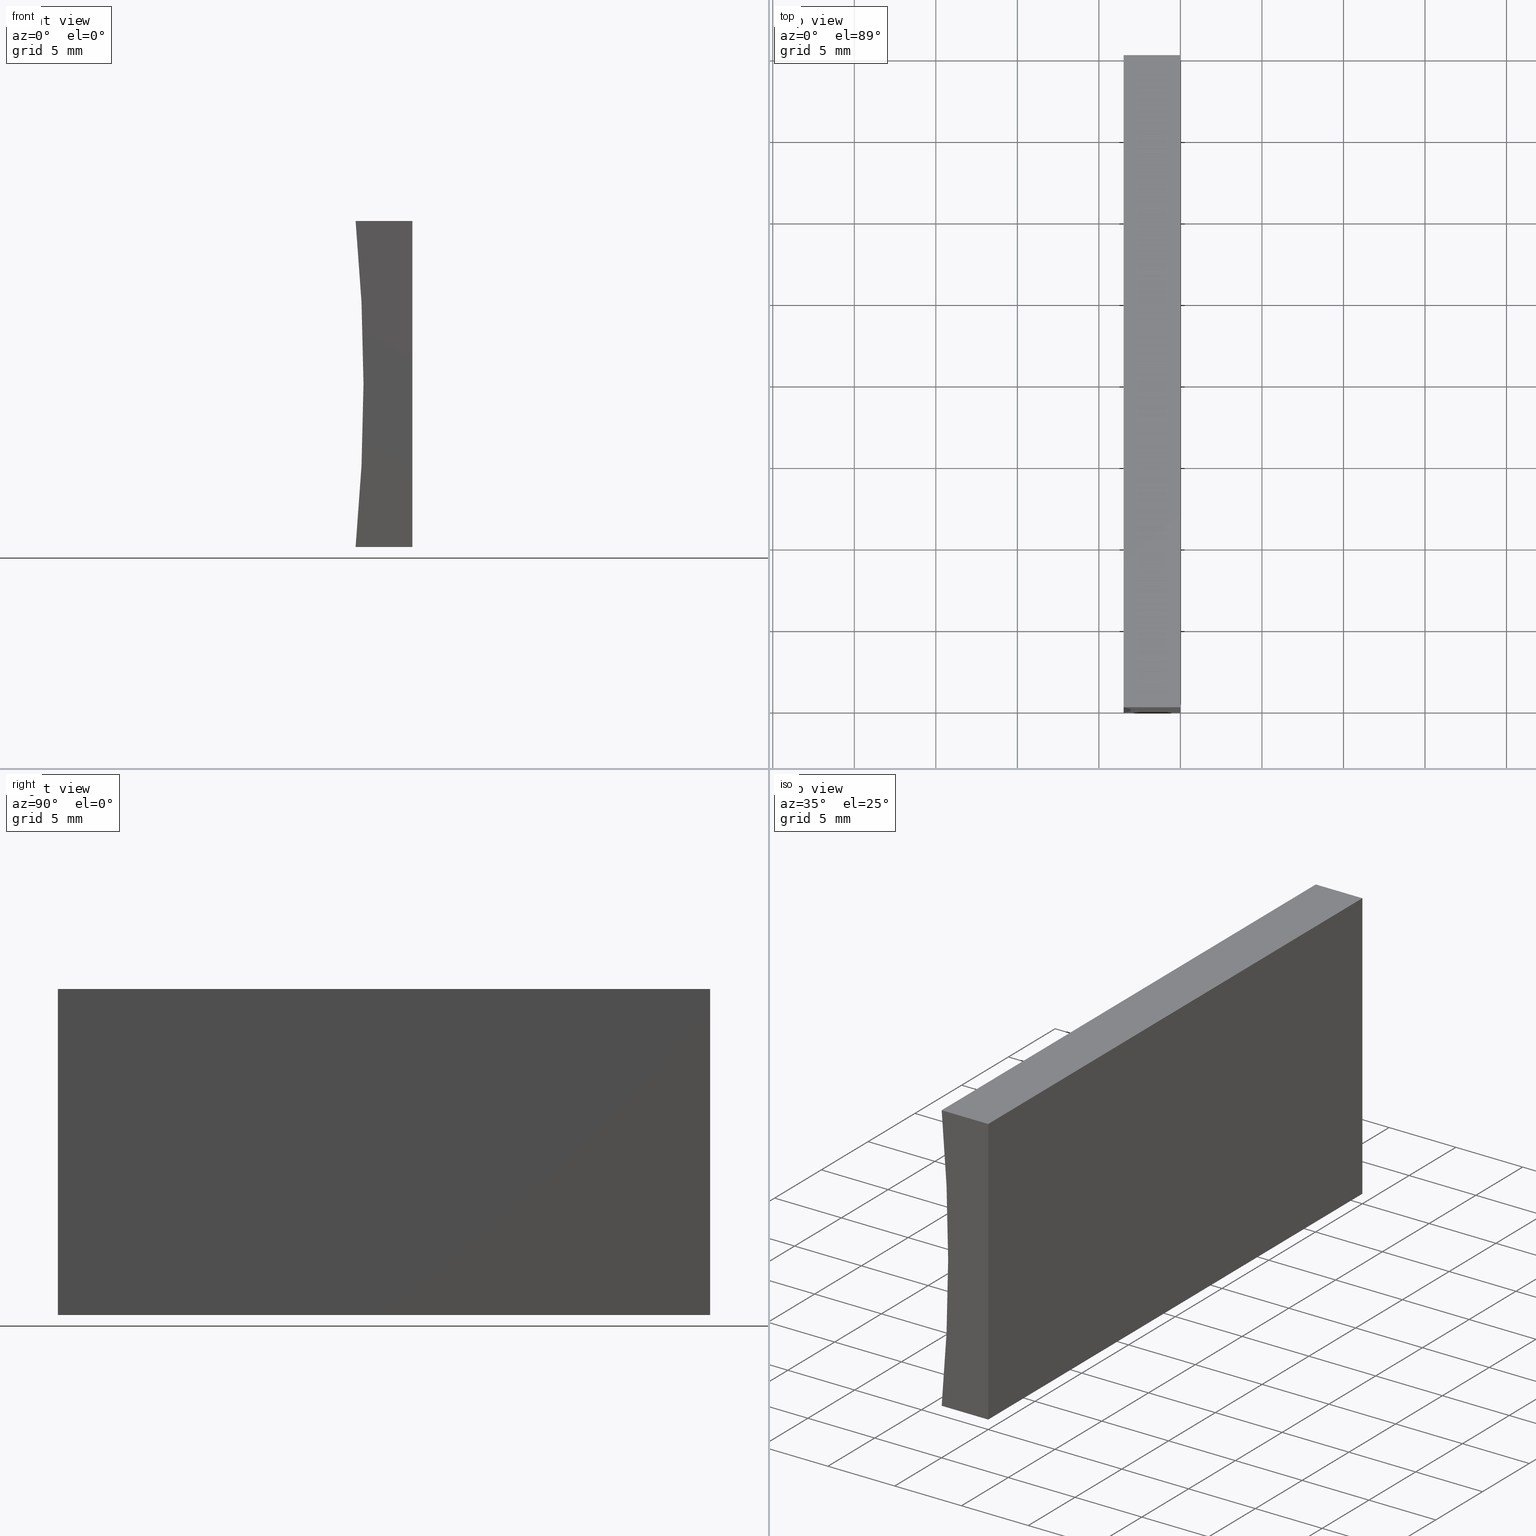
[diagram: canonical four-view strip — front | top / right | iso, engineering-drawing reading convention]
A machine part, canonical four-view strip (front | top / right | iso — engineering-drawing reading convention). The complete STEP part file that produces these views, byte-faithful:
ISO-10303-21;
HEADER;
FILE_DESCRIPTION (( 'STEP AP214' ),
    '1' );
FILE_NAME ('155359.STEP',
    '2019-06-28T07:20:12',
    ( 'user' ),
    ( '΢���й�' ),
    'SwSTEP 2.0',
    'SolidWorks 2016',
    '' );
FILE_SCHEMA (( 'AUTOMOTIVE_DESIGN' ));
ENDSEC;

DATA;
#1 = MECHANICAL_DESIGN_GEOMETRIC_PRESENTATION_REPRESENTATION (  '', ( #64 ), #5 ) ;
#2 = FACE_OUTER_BOUND ( 'NONE', #18, .T. ) ;
#3 = APPLICATION_PROTOCOL_DEFINITION ( 'draft international standard', 'automotive_design', 1998, #94 ) ;
#4 = EDGE_CURVE ( 'NONE', #102, #168, #181, .T. ) ;
#5 =( GEOMETRIC_REPRESENTATION_CONTEXT ( 3 ) GLOBAL_UNCERTAINTY_ASSIGNED_CONTEXT ( ( #27 ) ) GLOBAL_UNIT_ASSIGNED_CONTEXT ( ( #192, #43, #54 ) ) REPRESENTATION_CONTEXT ( 'NONE', 'WORKASPACE' ) );
#6 = MECHANICAL_DESIGN_GEOMETRIC_PRESENTATION_REPRESENTATION (  '', ( #86 ), #118 ) ;
#7 = VERTEX_POINT ( 'NONE', #56 ) ;
#8 = AXIS2_PLACEMENT_3D ( 'NONE', #128, #198, #110 ) ;
#9 = CLOSED_SHELL ( 'NONE', ( #36, #123, #32, #65, #184, #103 ) ) ;
#10 = ORIENTED_EDGE ( 'NONE', *, *, #107, .T. ) ;
#11 =( GEOMETRIC_REPRESENTATION_CONTEXT ( 3 ) GLOBAL_UNCERTAINTY_ASSIGNED_CONTEXT ( ( #201 ) ) GLOBAL_UNIT_ASSIGNED_CONTEXT ( ( #183, #39, #30 ) ) REPRESENTATION_CONTEXT ( 'NONE', 'WORKASPACE' ) );
#12 = ORIENTED_EDGE ( 'NONE', *, *, #171, .T. ) ;
#13 = SURFACE_STYLE_USAGE ( .BOTH. , #71 ) ;
#14 = DIRECTION ( 'NONE',  ( -0.0000000000000000000, -1.000000000000000000, -0.0000000000000000000 ) ) ;
#15 = DIRECTION ( 'NONE',  ( -1.000000000000000000, 0.0000000000000000000, -9.956242759457456300E-016 ) ) ;
#16 = LINE ( 'NONE', #173, #117 ) ;
#17 = CIRCLE ( 'NONE', #22, 103.4000000000000200 ) ;
#18 = EDGE_LOOP ( 'NONE', ( #57, #190, #116, #90 ) ) ;
#19 = CIRCLE ( 'NONE', #8, 103.4000000000000200 ) ;
#20 = AXIS2_PLACEMENT_3D ( 'NONE', #87, #23, #175 ) ;
#21 = ORIENTED_EDGE ( 'NONE', *, *, #107, .F. ) ;
#22 = AXIS2_PLACEMENT_3D ( 'NONE', #70, #14, #197 ) ;
#23 = DIRECTION ( 'NONE',  ( -9.956242759457456300E-016, 0.0000000000000000000, 1.000000000000000000 ) ) ;
#24 = CARTESIAN_POINT ( 'NONE',  ( -106.4000000000000100, 40.00000000000000000, 10.00000000000001600 ) ) ;
#25 = EDGE_CURVE ( 'NONE', #122, #154, #89, .T. ) ;
#26 = DIRECTION ( 'NONE',  ( -0.0000000000000000000, -1.000000000000000000, -0.0000000000000000000 ) ) ;
#27 = UNCERTAINTY_MEASURE_WITH_UNIT (LENGTH_MEASURE( 1.000000000000000100E-005 ), #192, 'distance_accuracy_value', 'NONE');
#28 =( NAMED_UNIT ( * ) PLANE_ANGLE_UNIT ( ) SI_UNIT ( $, .RADIAN. ) );
#29 = CARTESIAN_POINT ( 'NONE',  ( -3.484695015755795200, 40.00000000000000000, 20.00000000000000400 ) ) ;
#30 =( NAMED_UNIT ( * ) SI_UNIT ( $, .STERADIAN. ) SOLID_ANGLE_UNIT ( ) );
#31 = DIRECTION ( 'NONE',  ( -6.123233995736766000E-017, -0.0000000000000000000, -1.000000000000000000 ) ) ;
#32 = ADVANCED_FACE ( 'NONE', ( #147 ), #189, .F. ) ;
#33 = PLANE ( 'NONE',  #82 ) ;
#34 = AXIS2_PLACEMENT_3D ( 'NONE', #134, #153, #162 ) ;
#35 = FILL_AREA_STYLE ('',( #172 ) ) ;
#36 = ADVANCED_FACE ( 'NONE', ( #92 ), #151, .F. ) ;
#37 = COLOUR_RGB ( '',1.000000000000000000, 1.000000000000000000, 1.000000000000000000 ) ;
#38 = EDGE_LOOP ( 'NONE', ( #199, #99, #163, #61 ) ) ;
#39 =( NAMED_UNIT ( * ) PLANE_ANGLE_UNIT ( ) SI_UNIT ( $, .RADIAN. ) );
#40 = PRODUCT_DEFINITION_FORMATION_WITH_SPECIFIED_SOURCE ( '�κ�', '', #109, .NOT_KNOWN. ) ;
#41 = PRESENTATION_STYLE_ASSIGNMENT (( #13 ) ) ;
#42 = ORIENTED_EDGE ( 'NONE', *, *, #111, .T. ) ;
#43 =( NAMED_UNIT ( * ) PLANE_ANGLE_UNIT ( ) SI_UNIT ( $, .RADIAN. ) );
#44 = AXIS2_PLACEMENT_3D ( 'NONE', #104, #149, #180 ) ;
#45 = DIRECTION ( 'NONE',  ( -0.0000000000000000000, -1.000000000000000000, -0.0000000000000000000 ) ) ;
#46 = CYLINDRICAL_SURFACE ( 'NONE', #44, 103.4000000000000200 ) ;
#47 = ORIENTED_EDGE ( 'NONE', *, *, #66, .T. ) ;
#48 = EDGE_CURVE ( 'NONE', #168, #7, #83, .T. ) ;
#49 = EDGE_LOOP ( 'NONE', ( #84, #156, #202, #10 ) ) ;
#50 = SHAPE_DEFINITION_REPRESENTATION ( #80, #157 ) ;
#51 = CARTESIAN_POINT ( 'NONE',  ( -3.484695015755795200, 40.00000000000000000, 20.00000000000000400 ) ) ;
#52 = CARTESIAN_POINT ( 'NONE',  ( -3.484695015755795200, 40.00000000000000000, -1.214306433183765000E-014 ) ) ;
#53 = CARTESIAN_POINT ( 'NONE',  ( 0.0000000000000000000, 40.00000000000000000, 0.0000000000000000000 ) ) ;
#54 =( NAMED_UNIT ( * ) SI_UNIT ( $, .STERADIAN. ) SOLID_ANGLE_UNIT ( ) );
#55 = PRODUCT_RELATED_PRODUCT_CATEGORY ( 'part', '', ( #109 ) ) ;
#56 = CARTESIAN_POINT ( 'NONE',  ( 1.224646799147353300E-015, 0.0000000000000000000, 20.00000000000000000 ) ) ;
#57 = ORIENTED_EDGE ( 'NONE', *, *, #88, .T. ) ;
#58 = VECTOR ( 'NONE', #195, 1000.000000000000000 ) ;
#59 = DIRECTION ( 'NONE',  ( -9.956242759457458300E-016, 0.0000000000000000000, -1.000000000000000000 ) ) ;
#60 = CARTESIAN_POINT ( 'NONE',  ( 0.0000000000000000000, 0.0000000000000000000, 0.0000000000000000000 ) ) ;
#61 = ORIENTED_EDGE ( 'NONE', *, *, #88, .F. ) ;
#62 = DIRECTION ( 'NONE',  ( 0.0000000000000000000, 1.000000000000000000, 0.0000000000000000000 ) ) ;
#63 = EDGE_LOOP ( 'NONE', ( #75, #76, #47, #12 ) ) ;
#64 = STYLED_ITEM ( 'NONE', ( #159 ), #77 ) ;
#65 = ADVANCED_FACE ( 'NONE', ( #135 ), #33, .F. ) ;
#66 = EDGE_CURVE ( 'NONE', #102, #106, #85, .T. ) ;
#67 = ORIENTED_EDGE ( 'NONE', *, *, #171, .F. ) ;
#68 = ORIENTED_EDGE ( 'NONE', *, *, #48, .T. ) ;
#69 = CARTESIAN_POINT ( 'NONE',  ( 1.224646799147353300E-015, 0.0000000000000000000, 20.00000000000000000 ) ) ;
#70 = CARTESIAN_POINT ( 'NONE',  ( -106.4000000000000100, 40.00000000000000000, 10.00000000000001600 ) ) ;
#71 = SURFACE_SIDE_STYLE ('',( #164 ) ) ;
#72 = PRESENTATION_LAYER_ASSIGNMENT (  '', '', ( #64 ) ) ;
#73 = AXIS2_PLACEMENT_3D ( 'NONE', #60, #91, #100 ) ;
#74 = CARTESIAN_POINT ( 'NONE',  ( 1.224646799147353300E-015, 40.00000000000000000, 20.00000000000000000 ) ) ;
#75 = ORIENTED_EDGE ( 'NONE', *, *, #25, .T. ) ;
#76 = ORIENTED_EDGE ( 'NONE', *, *, #194, .T. ) ;
#77 = MANIFOLD_SOLID_BREP ( '͹̨-����1', #9 ) ;
#78 = CARTESIAN_POINT ( 'NONE',  ( 1.224646799147353300E-015, 40.00000000000000000, 20.00000000000000000 ) ) ;
#79 = VECTOR ( 'NONE', #26, 1000.000000000000000 ) ;
#80 = PRODUCT_DEFINITION_SHAPE ( 'NONE', 'NONE',  #98 ) ;
#81 = LINE ( 'NONE', #204, #137 ) ;
#82 = AXIS2_PLACEMENT_3D ( 'NONE', #53, #187, #177 ) ;
#83 = LINE ( 'NONE', #69, #120 ) ;
#84 = ORIENTED_EDGE ( 'NONE', *, *, #125, .T. ) ;
#85 = LINE ( 'NONE', #74, #165 ) ;
#86 = STYLED_ITEM ( 'NONE', ( #41 ), #157 ) ;
#87 = CARTESIAN_POINT ( 'NONE',  ( 0.0000000000000000000, 40.00000000000000000, 0.0000000000000000000 ) ) ;
#88 = EDGE_CURVE ( 'NONE', #97, #168, #19, .T. ) ;
#89 = LINE ( 'NONE', #174, #138 ) ;
#90 = ORIENTED_EDGE ( 'NONE', *, *, #115, .T. ) ;
#91 = DIRECTION ( 'NONE',  ( 0.0000000000000000000, 0.0000000000000000000, 1.000000000000000000 ) ) ;
#92 = FACE_OUTER_BOUND ( 'NONE', #49, .T. ) ;
#93 = CARTESIAN_POINT ( 'NONE',  ( 0.0000000000000000000, 40.00000000000000000, 0.0000000000000000000 ) ) ;
#94 = APPLICATION_CONTEXT ( 'automotive_design' ) ;
#95 = ORIENTED_EDGE ( 'NONE', *, *, #152, .T. ) ;
#96 = PRESENTATION_LAYER_ASSIGNMENT (  '', '', ( #86 ) ) ;
#97 = VERTEX_POINT ( 'NONE', #158 ) ;
#98 = PRODUCT_DEFINITION ( 'δ֪', '', #40, #155 ) ;
#99 = ORIENTED_EDGE ( 'NONE', *, *, #152, .F. ) ;
#100 = DIRECTION ( 'NONE',  ( 1.000000000000000000, 0.0000000000000000000, 0.0000000000000000000 ) ) ;
#101 =( LENGTH_UNIT ( ) NAMED_UNIT ( * ) SI_UNIT ( .MILLI., .METRE. ) );
#102 = VERTEX_POINT ( 'NONE', #51 ) ;
#103 = ADVANCED_FACE ( 'NONE', ( #150 ), #203, .F. ) ;
#104 = CARTESIAN_POINT ( 'NONE',  ( -106.4000000000000100, 40.00000000000000000, 10.00000000000001600 ) ) ;
#105 = COLOUR_RGB ( '',1.000000000000000000, 1.000000000000000000, 1.000000000000000000 ) ;
#106 = VERTEX_POINT ( 'NONE', #188 ) ;
#107 = EDGE_CURVE ( 'NONE', #122, #140, #16, .T. ) ;
#108 = DIRECTION ( 'NONE',  ( -1.000000000000000000, 0.0000000000000000000, -9.956242759457456300E-016 ) ) ;
#109 = PRODUCT ( '155359', '155359', '', ( #133 ) ) ;
#110 = DIRECTION ( 'NONE',  ( 0.0000000000000000000, 0.0000000000000000000, 1.000000000000000000 ) ) ;
#111 = EDGE_CURVE ( 'NONE', #106, #7, #81, .T. ) ;
#112 = CARTESIAN_POINT ( 'NONE',  ( 0.0000000000000000000, 40.00000000000000000, 0.0000000000000000000 ) ) ;
#113 = ORIENTED_EDGE ( 'NONE', *, *, #4, .T. ) ;
#114 = VECTOR ( 'NONE', #108, 1000.000000000000000 ) ;
#115 = EDGE_CURVE ( 'NONE', #154, #97, #185, .T. ) ;
#116 = ORIENTED_EDGE ( 'NONE', *, *, #194, .F. ) ;
#117 = VECTOR ( 'NONE', #170, 1000.000000000000000 ) ;
#118 =( GEOMETRIC_REPRESENTATION_CONTEXT ( 3 ) GLOBAL_UNCERTAINTY_ASSIGNED_CONTEXT ( ( #191 ) ) GLOBAL_UNIT_ASSIGNED_CONTEXT ( ( #101, #28, #131 ) ) REPRESENTATION_CONTEXT ( 'NONE', 'WORKASPACE' ) );
#119 = CARTESIAN_POINT ( 'NONE',  ( -3.484695015755795200, 40.00000000000000000, -1.214306433183765000E-014 ) ) ;
#120 = VECTOR ( 'NONE', #142, 1000.000000000000000 ) ;
#121 = LINE ( 'NONE', #124, #114 ) ;
#122 = VERTEX_POINT ( 'NONE', #112 ) ;
#123 = ADVANCED_FACE ( 'NONE', ( #2 ), #46, .F. ) ;
#124 = CARTESIAN_POINT ( 'NONE',  ( 0.0000000000000000000, 0.0000000000000000000, 0.0000000000000000000 ) ) ;
#125 = EDGE_CURVE ( 'NONE', #140, #97, #121, .T. ) ;
#126 = FILL_AREA_STYLE ('',( #146 ) ) ;
#127 = EDGE_LOOP ( 'NONE', ( #68, #132, #169, #113 ) ) ;
#128 = CARTESIAN_POINT ( 'NONE',  ( -106.4000000000000100, 0.0000000000000000000, 10.00000000000001600 ) ) ;
#129 = LINE ( 'NONE', #166, #58 ) ;
#130 = CARTESIAN_POINT ( 'NONE',  ( 0.0000000000000000000, 0.0000000000000000000, 0.0000000000000000000 ) ) ;
#131 =( NAMED_UNIT ( * ) SI_UNIT ( $, .STERADIAN. ) SOLID_ANGLE_UNIT ( ) );
#132 = ORIENTED_EDGE ( 'NONE', *, *, #111, .F. ) ;
#133 = PRODUCT_CONTEXT ( 'NONE', #161, 'mechanical' ) ;
#134 = CARTESIAN_POINT ( 'NONE',  ( -106.4000000000000100, 0.0000000000000000000, 10.00000000000001600 ) ) ;
#135 = FACE_OUTER_BOUND ( 'NONE', #186, .T. ) ;
#136 = SURFACE_STYLE_FILL_AREA ( #126 ) ;
#137 = VECTOR ( 'NONE', #45, 1000.000000000000000 ) ;
#138 = VECTOR ( 'NONE', #15, 1000.000000000000000 ) ;
#139 = VECTOR ( 'NONE', #196, 1000.000000000000000 ) ;
#140 = VERTEX_POINT ( 'NONE', #130 ) ;
#141 = DIRECTION ( 'NONE',  ( 0.0000000000000000000, -0.0000000000000000000, 1.000000000000000000 ) ) ;
#142 = DIRECTION ( 'NONE',  ( 1.000000000000000000, -0.0000000000000000000, -9.956242759457458300E-016 ) ) ;
#143 = SURFACE_STYLE_USAGE ( .BOTH. , #179 ) ;
#144 = FACE_OUTER_BOUND ( 'NONE', #63, .T. ) ;
#145 = DIRECTION ( 'NONE',  ( -1.000000000000000000, 0.0000000000000000000, 9.956242759457458300E-016 ) ) ;
#146 = FILL_AREA_STYLE_COLOUR ( '', #105 ) ;
#147 = FACE_OUTER_BOUND ( 'NONE', #127, .T. ) ;
#148 = CARTESIAN_POINT ( 'NONE',  ( -3.484695015755795200, 0.0000000000000000000, 20.00000000000000400 ) ) ;
#149 = DIRECTION ( 'NONE',  ( -0.0000000000000000000, -1.000000000000000000, -0.0000000000000000000 ) ) ;
#150 = FACE_OUTER_BOUND ( 'NONE', #38, .T. ) ;
#151 = PLANE ( 'NONE',  #20 ) ;
#152 = EDGE_CURVE ( 'NONE', #7, #140, #129, .T. ) ;
#153 = DIRECTION ( 'NONE',  ( 0.0000000000000000000, 1.000000000000000000, 0.0000000000000000000 ) ) ;
#154 = VERTEX_POINT ( 'NONE', #52 ) ;
#155 = PRODUCT_DEFINITION_CONTEXT ( 'detailed design', #94, 'design' ) ;
#156 = ORIENTED_EDGE ( 'NONE', *, *, #115, .F. ) ;
#157 = ADVANCED_BREP_SHAPE_REPRESENTATION ( '155359', ( #77, #73 ), #11 ) ;
#158 = CARTESIAN_POINT ( 'NONE',  ( -3.484695015755795200, 0.0000000000000000000, -1.214306433183765000E-014 ) ) ;
#159 = PRESENTATION_STYLE_ASSIGNMENT (( #143 ) ) ;
#160 = VECTOR ( 'NONE', #31, 1000.000000000000000 ) ;
#161 = APPLICATION_CONTEXT ( 'automotive_design' ) ;
#162 = DIRECTION ( 'NONE',  ( 0.0000000000000000000, -0.0000000000000000000, 1.000000000000000000 ) ) ;
#163 = ORIENTED_EDGE ( 'NONE', *, *, #48, .F. ) ;
#164 = SURFACE_STYLE_FILL_AREA ( #35 ) ;
#165 = VECTOR ( 'NONE', #182, 1000.000000000000000 ) ;
#166 = CARTESIAN_POINT ( 'NONE',  ( 0.0000000000000000000, 0.0000000000000000000, 0.0000000000000000000 ) ) ;
#167 = LINE ( 'NONE', #93, #160 ) ;
#168 = VERTEX_POINT ( 'NONE', #148 ) ;
#169 = ORIENTED_EDGE ( 'NONE', *, *, #66, .F. ) ;
#170 = DIRECTION ( 'NONE',  ( -0.0000000000000000000, -1.000000000000000000, -0.0000000000000000000 ) ) ;
#171 = EDGE_CURVE ( 'NONE', #106, #122, #167, .T. ) ;
#172 = FILL_AREA_STYLE_COLOUR ( '', #37 ) ;
#173 = CARTESIAN_POINT ( 'NONE',  ( 0.0000000000000000000, 40.00000000000000000, 0.0000000000000000000 ) ) ;
#174 = CARTESIAN_POINT ( 'NONE',  ( 0.0000000000000000000, 40.00000000000000000, 0.0000000000000000000 ) ) ;
#175 = DIRECTION ( 'NONE',  ( 1.000000000000000000, 0.0000000000000000000, 9.956242759457456300E-016 ) ) ;
#176 = AXIS2_PLACEMENT_3D ( 'NONE', #24, #62, #141 ) ;
#177 = DIRECTION ( 'NONE',  ( 6.123233995736766000E-017, 0.0000000000000000000, 1.000000000000000000 ) ) ;
#178 = APPLICATION_PROTOCOL_DEFINITION ( 'draft international standard', 'automotive_design', 1998, #161 ) ;
#179 = SURFACE_SIDE_STYLE ('',( #136 ) ) ;
#180 = DIRECTION ( 'NONE',  ( 0.0000000000000000000, 0.0000000000000000000, -1.000000000000000000 ) ) ;
#181 = LINE ( 'NONE', #29, #79 ) ;
#182 = DIRECTION ( 'NONE',  ( 1.000000000000000000, -0.0000000000000000000, -9.956242759457458300E-016 ) ) ;
#183 =( LENGTH_UNIT ( ) NAMED_UNIT ( * ) SI_UNIT ( .MILLI., .METRE. ) );
#184 = ADVANCED_FACE ( 'NONE', ( #144 ), #193, .T. ) ;
#185 = LINE ( 'NONE', #119, #139 ) ;
#186 = EDGE_LOOP ( 'NONE', ( #95, #21, #67, #42 ) ) ;
#187 = DIRECTION ( 'NONE',  ( -1.000000000000000000, 0.0000000000000000000, 6.123233995736766000E-017 ) ) ;
#188 = CARTESIAN_POINT ( 'NONE',  ( 1.224646799147353300E-015, 40.00000000000000000, 20.00000000000000000 ) ) ;
#189 = PLANE ( 'NONE',  #200 ) ;
#190 = ORIENTED_EDGE ( 'NONE', *, *, #4, .F. ) ;
#191 = UNCERTAINTY_MEASURE_WITH_UNIT (LENGTH_MEASURE( 1.000000000000000100E-005 ), #101, 'distance_accuracy_value', 'NONE');
#192 =( LENGTH_UNIT ( ) NAMED_UNIT ( * ) SI_UNIT ( .MILLI., .METRE. ) );
#193 = PLANE ( 'NONE',  #176 ) ;
#194 = EDGE_CURVE ( 'NONE', #154, #102, #17, .T. ) ;
#195 = DIRECTION ( 'NONE',  ( -6.123233995736766000E-017, -0.0000000000000000000, -1.000000000000000000 ) ) ;
#196 = DIRECTION ( 'NONE',  ( -0.0000000000000000000, -1.000000000000000000, -0.0000000000000000000 ) ) ;
#197 = DIRECTION ( 'NONE',  ( 0.0000000000000000000, 0.0000000000000000000, 1.000000000000000000 ) ) ;
#198 = DIRECTION ( 'NONE',  ( -0.0000000000000000000, -1.000000000000000000, -0.0000000000000000000 ) ) ;
#199 = ORIENTED_EDGE ( 'NONE', *, *, #125, .F. ) ;
#200 = AXIS2_PLACEMENT_3D ( 'NONE', #78, #59, #145 ) ;
#201 = UNCERTAINTY_MEASURE_WITH_UNIT (LENGTH_MEASURE( 1.000000000000000100E-005 ), #183, 'distance_accuracy_value', 'NONE');
#202 = ORIENTED_EDGE ( 'NONE', *, *, #25, .F. ) ;
#203 = PLANE ( 'NONE',  #34 ) ;
#204 = CARTESIAN_POINT ( 'NONE',  ( 1.224646799147353300E-015, 40.00000000000000000, 20.00000000000000000 ) ) ;
ENDSEC;
END-ISO-10303-21;
